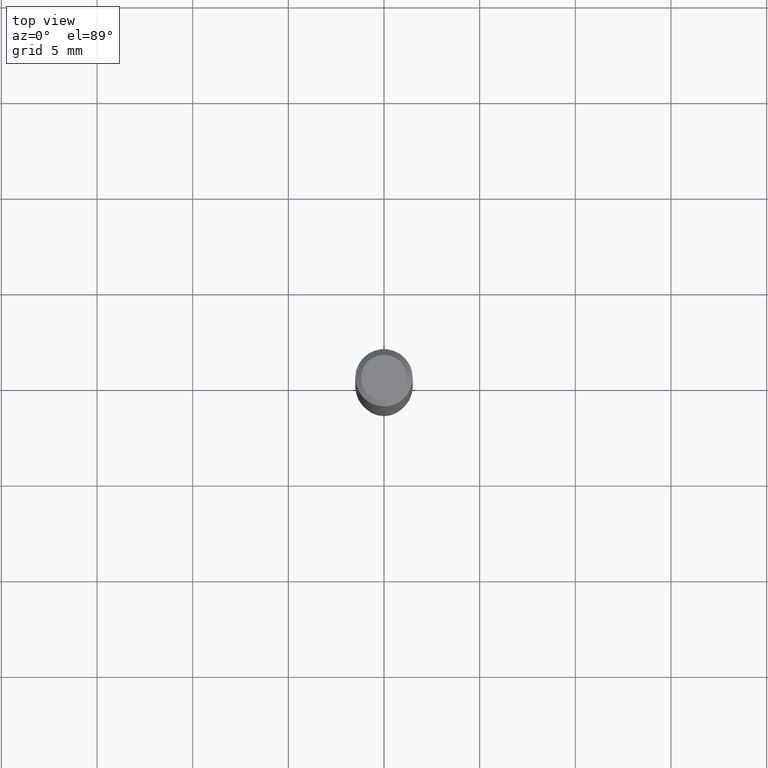
[diagram: clean part render]
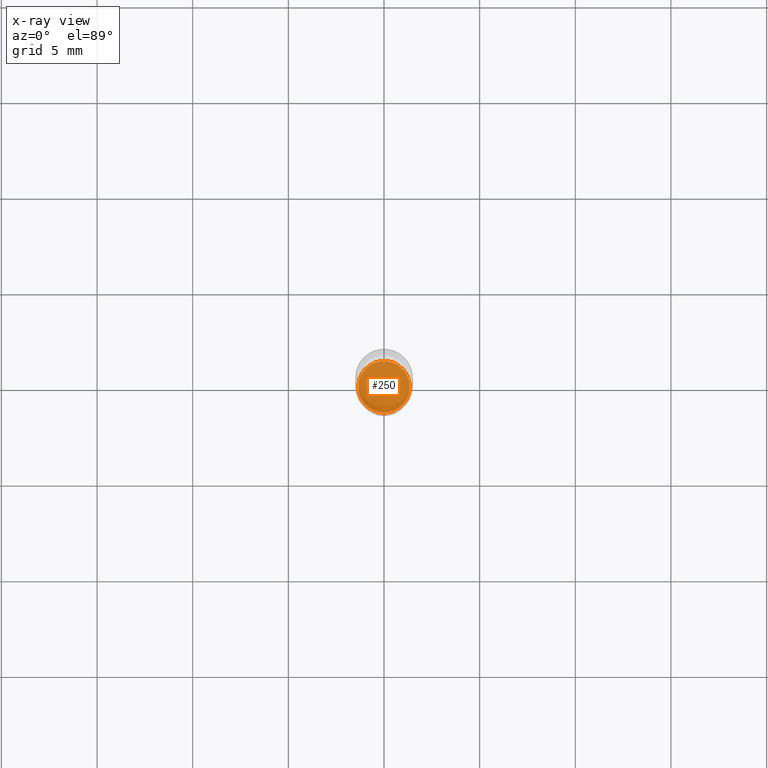
[diagram: x-ray — body ghosted, one internal face saturated and labeled with its STEP entity id]
A machine part, top view, then the same camera in x-ray: the body is ghosted and one INTERNAL B-rep face — a face not visible from any outside direction — is saturated and labeled: STEP entity #250.
In plain terms, the highlighted planar face has unit normal (-0, 0, 1).
Its self-contained STEP definition (entity closure, byte-faithful):
#9 = DIRECTION ( 'NONE',  ( 1.000000000000000000, -6.982962677686265922E-15, 4.876176775795935793E-29 ) ) ;
#25 = AXIS2_PLACEMENT_3D ( 'NONE', #124, #89, #9 ) ;
#38 = ORIENTED_EDGE ( 'NONE', *, *, #212, .F. ) ;
#39 = CIRCLE ( 'NONE', #121, 0.05304999999999999993 ) ;
#50 = DIRECTION ( 'NONE',  ( -2.445468806185136597E-29, 3.491481338843145583E-15, 1.000000000000000000 ) ) ;
#59 = CIRCLE ( 'NONE', #418, 0.05304999999999999993 ) ;
#89 = DIRECTION ( 'NONE',  ( -2.438088387897960049E-29, 3.491481338843145188E-15, 1.000000000000000000 ) ) ;
#121 = AXIS2_PLACEMENT_3D ( 'NONE', #355, #50, #270 ) ;
#124 = CARTESIAN_POINT ( 'NONE',  ( 7.086945735193175307E-30, -6.639529651533037669E-15, -1.094500000000000028 ) ) ;
#133 = VERTEX_POINT ( 'NONE', #308 ) ;
#160 = CARTESIAN_POINT ( 'NONE',  ( -0.05304999999999999993, -3.441834176868978523E-15, -1.094500000000000028 ) ) ;
#172 = ORIENTED_EDGE ( 'NONE', *, *, #353, .F. ) ;
#174 = EDGE_LOOP ( 'NONE', ( #38, #172 ) ) ;
#200 = PLANE ( 'NONE',  #25 ) ;
#203 = FACE_OUTER_BOUND ( 'NONE', #174, .T. ) ;
#212 = EDGE_CURVE ( 'NONE', #133, #370, #59, .T. ) ;
#250 = ADVANCED_FACE ( 'NONE', ( #203 ), #200, .F. ) ;
#270 = DIRECTION ( 'NONE',  ( 1.000000000000000000, -6.982962677686265922E-15, 0.000000000000000000 ) ) ;
#308 = CARTESIAN_POINT ( 'NONE',  ( 0.05304999999999999993, -4.191872495415079241E-15, -1.094500000000000028 ) ) ;
#353 = EDGE_CURVE ( 'NONE', #370, #133, #39, .T. ) ;
#355 = CARTESIAN_POINT ( 'NONE',  ( 2.676565608369632355E-29, -3.821426325363822773E-15, -1.094500000000000028 ) ) ;
#370 = VERTEX_POINT ( 'NONE', #160 ) ;
#398 = CARTESIAN_POINT ( 'NONE',  ( 2.676565608369632355E-29, -3.821426325363822773E-15, -1.094500000000000028 ) ) ;
#400 = DIRECTION ( 'NONE',  ( -2.445468806185136597E-29, 3.491481338843145583E-15, 1.000000000000000000 ) ) ;
#418 = AXIS2_PLACEMENT_3D ( 'NONE', #398, #400, #433 ) ;
#433 = DIRECTION ( 'NONE',  ( 1.000000000000000000, -6.982962677686265922E-15, 0.000000000000000000 ) ) ;